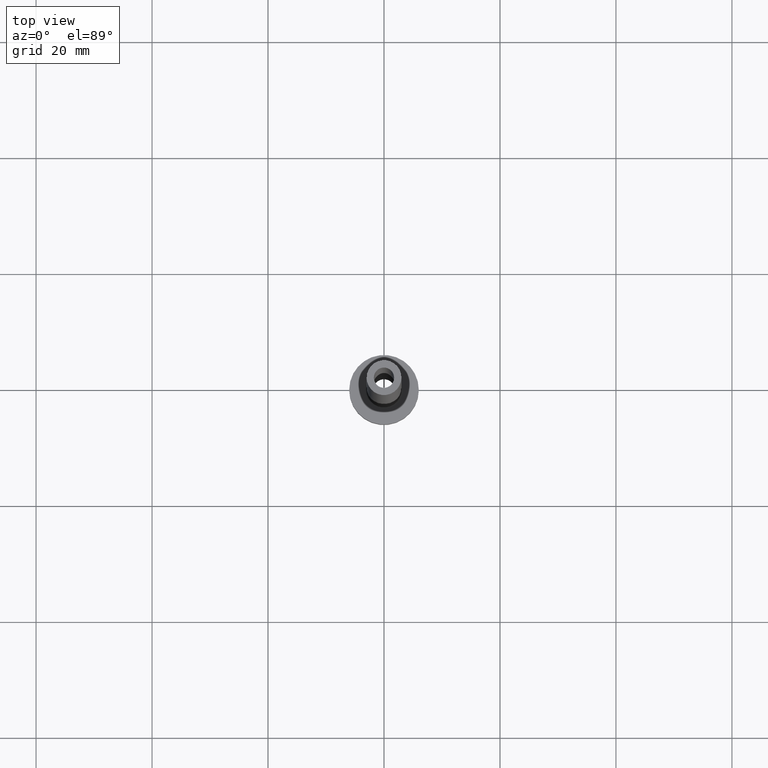
[diagram: clean part render]
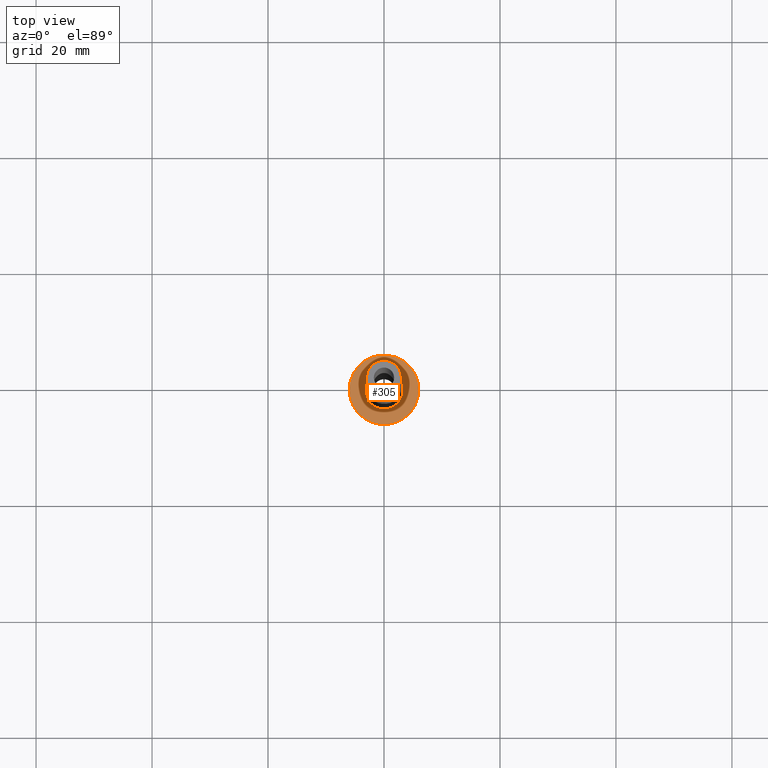
[diagram: same view with one face highlighted and labeled with its STEP entity id]
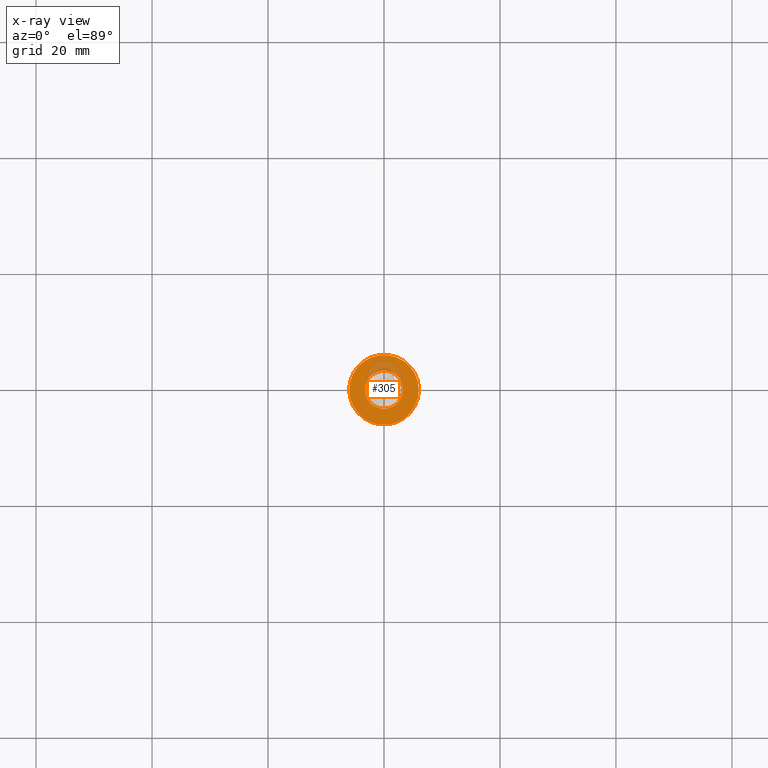
[diagram: x-ray of the same camera — body ghosted, the highlighted face saturated]
A machine part, top view. The second image highlights one B-rep face of the part: STEP entity #305.
The next image is the same camera in x-ray: the body ghosted, the highlighted face saturated — about 13% of this face is hidden behind the body in this view.
In plain terms, the highlighted planar face has unit normal (0, 0, 1).
Its self-contained STEP definition (entity closure, byte-faithful):
#3 = CARTESIAN_POINT ( 'NONE',  ( -3.300000000000000266, 4.041334437186266003E-16, 4.999999999999999112 ) ) ;
#16 = CIRCLE ( 'NONE', #215, 6.000000000000000888 ) ;
#24 = AXIS2_PLACEMENT_3D ( 'NONE', #140, #276, #384 ) ;
#28 = CARTESIAN_POINT ( 'NONE',  ( 6.000000000000000888, 7.347880794884120722E-16, 5.000000000000000000 ) ) ;
#34 = ORIENTED_EDGE ( 'NONE', *, *, #115, .T. ) ;
#44 = DIRECTION ( 'NONE',  ( 0.000000000000000000, 0.000000000000000000, 1.000000000000000000 ) ) ;
#65 = DIRECTION ( 'NONE',  ( 0.000000000000000000, 0.000000000000000000, 1.000000000000000000 ) ) ;
#87 = CIRCLE ( 'NONE', #24, 6.000000000000000888 ) ;
#95 = CARTESIAN_POINT ( 'NONE',  ( 0.000000000000000000, 0.000000000000000000, 5.000000000000000000 ) ) ;
#104 = PLANE ( 'NONE',  #151 ) ;
#115 = EDGE_CURVE ( 'NONE', #126, #412, #168, .T. ) ;
#126 = VERTEX_POINT ( 'NONE', #3 ) ;
#140 = CARTESIAN_POINT ( 'NONE',  ( 0.000000000000000000, 0.000000000000000000, 5.000000000000000000 ) ) ;
#144 = CARTESIAN_POINT ( 'NONE',  ( -6.000000000000000888, 0.000000000000000000, 5.000000000000000000 ) ) ;
#151 = AXIS2_PLACEMENT_3D ( 'NONE', #316, #44, #434 ) ;
#152 = AXIS2_PLACEMENT_3D ( 'NONE', #95, #310, #315 ) ;
#158 = ORIENTED_EDGE ( 'NONE', *, *, #269, .T. ) ;
#168 = CIRCLE ( 'NONE', #325, 3.300000000000000266 ) ;
#184 = EDGE_LOOP ( 'NONE', ( #431, #34 ) ) ;
#186 = CARTESIAN_POINT ( 'NONE',  ( 0.000000000000000000, 0.000000000000000000, 5.000000000000000000 ) ) ;
#193 = EDGE_CURVE ( 'NONE', #280, #244, #87, .T. ) ;
#206 = DIRECTION ( 'NONE',  ( 1.000000000000000000, 0.000000000000000000, 0.000000000000000000 ) ) ;
#215 = AXIS2_PLACEMENT_3D ( 'NONE', #393, #65, #206 ) ;
#244 = VERTEX_POINT ( 'NONE', #28 ) ;
#269 = EDGE_CURVE ( 'NONE', #244, #280, #16, .T. ) ;
#276 = DIRECTION ( 'NONE',  ( 0.000000000000000000, 0.000000000000000000, 1.000000000000000000 ) ) ;
#280 = VERTEX_POINT ( 'NONE', #144 ) ;
#286 = FACE_BOUND ( 'NONE', #184, .T. ) ;
#302 = EDGE_LOOP ( 'NONE', ( #400, #158 ) ) ;
#305 = ADVANCED_FACE ( 'NONE', ( #286, #436 ), #104, .T. ) ;
#310 = DIRECTION ( 'NONE',  ( -0.000000000000000000, -0.000000000000000000, -1.000000000000000000 ) ) ;
#315 = DIRECTION ( 'NONE',  ( 1.000000000000000000, 0.000000000000000000, 0.000000000000000000 ) ) ;
#316 = CARTESIAN_POINT ( 'NONE',  ( 0.000000000000000000, 0.000000000000000000, 5.000000000000000000 ) ) ;
#325 = AXIS2_PLACEMENT_3D ( 'NONE', #186, #338, #397 ) ;
#338 = DIRECTION ( 'NONE',  ( -0.000000000000000000, -0.000000000000000000, -1.000000000000000000 ) ) ;
#344 = CIRCLE ( 'NONE', #152, 3.300000000000000266 ) ;
#384 = DIRECTION ( 'NONE',  ( 1.000000000000000000, 0.000000000000000000, 0.000000000000000000 ) ) ;
#393 = CARTESIAN_POINT ( 'NONE',  ( 0.000000000000000000, 0.000000000000000000, 5.000000000000000000 ) ) ;
#397 = DIRECTION ( 'NONE',  ( 1.000000000000000000, 0.000000000000000000, 0.000000000000000000 ) ) ;
#400 = ORIENTED_EDGE ( 'NONE', *, *, #193, .T. ) ;
#412 = VERTEX_POINT ( 'NONE', #439 ) ;
#431 = ORIENTED_EDGE ( 'NONE', *, *, #453, .T. ) ;
#434 = DIRECTION ( 'NONE',  ( 1.000000000000000000, 0.000000000000000000, -0.000000000000000000 ) ) ;
#436 = FACE_OUTER_BOUND ( 'NONE', #302, .T. ) ;
#439 = CARTESIAN_POINT ( 'NONE',  ( 3.300000000000000266, 0.000000000000000000, 4.999999999999999112 ) ) ;
#453 = EDGE_CURVE ( 'NONE', #412, #126, #344, .T. ) ;